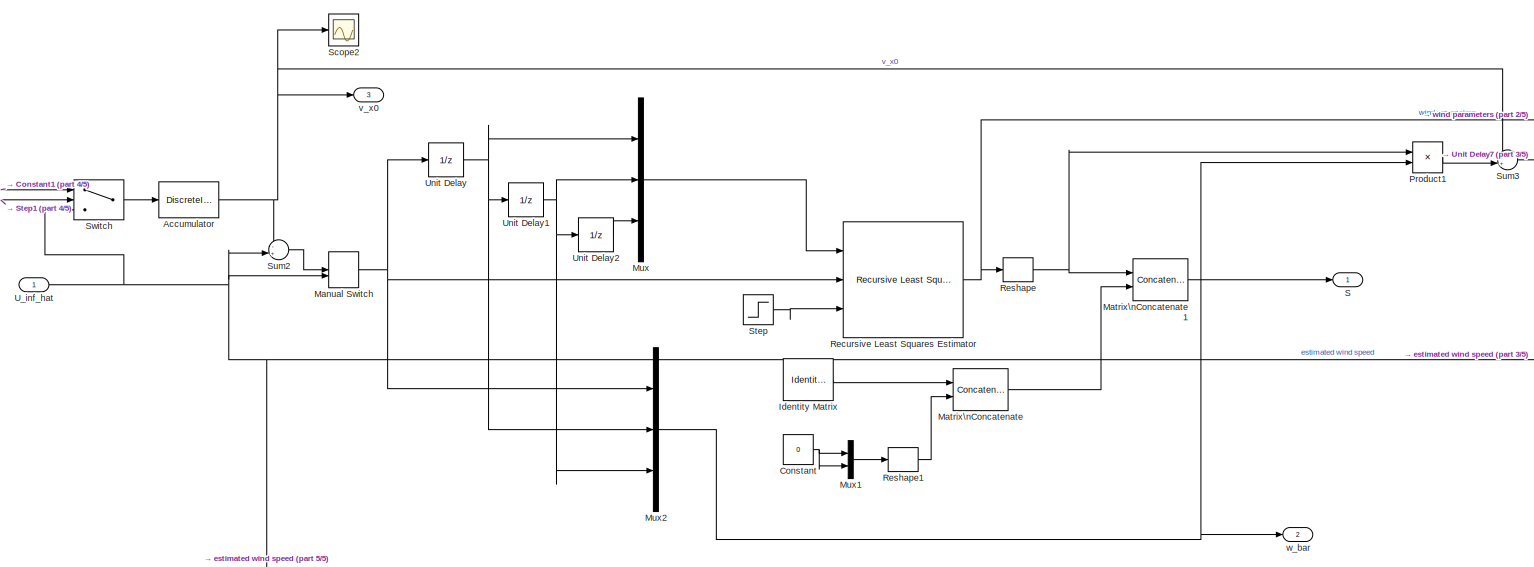
[diagram: root canvas - part 1/5, full width, top band]
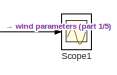
[diagram: root canvas - part 2/5, top right region]
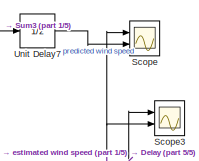
[diagram: root canvas - part 3/5, top right region]
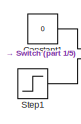
[diagram: root canvas - part 4/5, top left region]
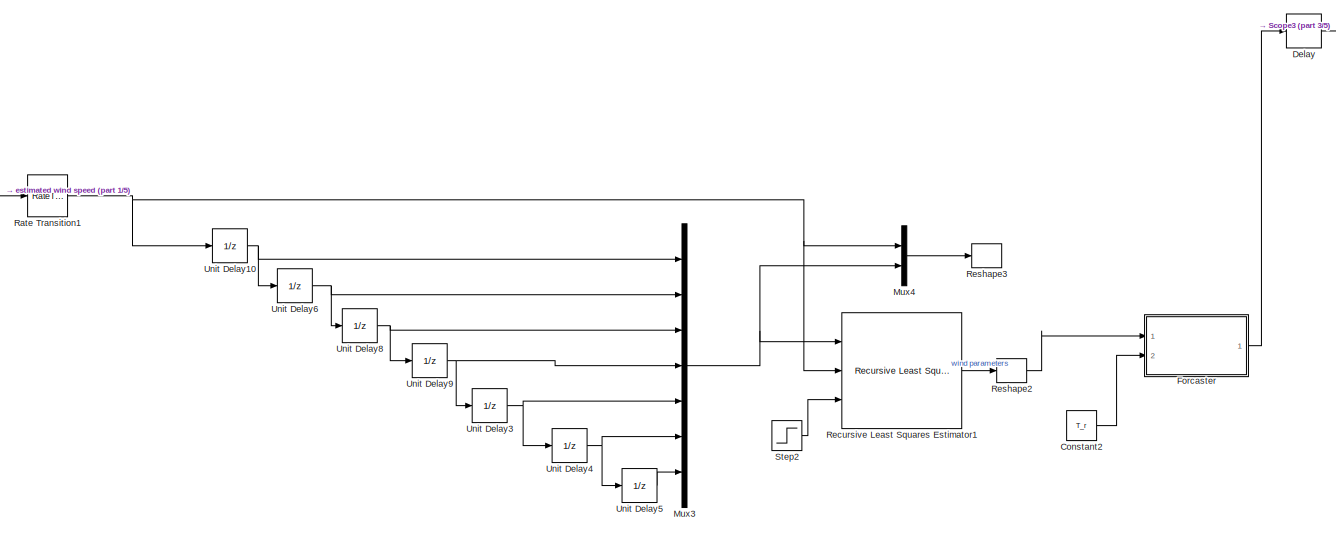
[diagram: root canvas - part 5/5, bottom center region]
MODEL forcaster
KIND model
BLOCK [DiscreteIntegrator] Accumulator
  ICPrevOutput = DiscIntNeverNeededParam
  ICPrevScaledInput = DiscIntNeverNeededParam
  InitialConditionSetting = Auto
  IntegratorMethod = Accumulation: Forward Euler
  Ports = [1, 1]
  SID = 63
  SampleTime = T_s
  gainval = T_s/T_mean
BLOCK [Constant] Constant
  SID = 2
  Value = 0
BLOCK [Constant] Constant1
  SID = 65
  Value = 0
BLOCK [Constant] Constant2
  SID = 69
  Value = T_r
BLOCK [Delay] Delay
  DelayLength = 46
  InitialCondition = 0
  InputPortMap = u0
  Ports = [1, 1]
  SID = 89
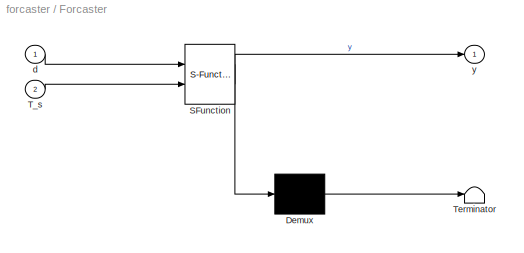
BLOCK [SubSystem] Forcaster
  ErrorFcn = Stateflow.Translate.translate
  PermitHierarchicalResolution = ExplicitOnly
  Ports = [2, 1]
  RequestExecContextInheritance = off
  SFBlockType = MATLAB Function
  SID = 68
  TreatAsAtomicUnit = on
BLOCK [Demux] Forcaster/ Demux 
  Outputs = 1
  Ports = [1, 1]
  SID = 68::20
BLOCK [S-Function] Forcaster/ SFunction 
  EnableBusSupport = on
  FunctionName = sf_sfun
  PortCounts = [2 2]
  Ports = [2, 2]
  SFcnIsStateOwnerBlock = off
  SFunctionDeploymentMode = off
  SID = 68::19
  Tag = Stateflow S-Function 2
BLOCK [Terminator] Forcaster/ Terminator 
  SID = 68::21
BLOCK [Inport] Forcaster/T_s
  Port = 2
  SID = 68::23
BLOCK [Inport] Forcaster/d
  SID = 68::1
BLOCK [Outport] Forcaster/y
  SID = 68::5
BLOCK [Reference] Identity Matrix  REF=dspmtrx3/Identity Matrix
  Inherit = off
  LastOutDataTypeStr = double
  MultiThreadCoSim = auto
  N = 2
  OutDataTypeStr = double
  Ports = [0, 1]
  SID = 3
  SourceBlock = dspmtrx3/Identity Matrix
  SourceProductBaseCode = DS
  SourceType = Identity Matrix
  Ts = T_s
  additionalParams = off
  allowOverrides = on
  dataType = double
  fracBitsMode = Best precision
  isSigned = on
  numFracBits = 15
  udDataType = sfix(16)
  wordLen = 16
BLOCK [ManualSwitch] Manual Switch
  CurrentSetting = 0
  SID = 71
BLOCK [Concatenate] Matrix\nConcatenate
  ConcatenateDimension = 2
  Mode = Multidimensional array
  Ports = [2, 1]
  SID = 4
BLOCK [Concatenate] Matrix\nConcatenate1
  Mode = Multidimensional array
  Ports = [2, 1]
  SID = 5
BLOCK [Mux] Mux
  DisplayOption = bar
  Inputs = 3
  Ports = [3, 1]
  SID = 6
BLOCK [Mux] Mux1
  DisplayOption = bar
  Inputs = 2
  Ports = [2, 1]
  SID = 7
BLOCK [Mux] Mux2
  DisplayOption = bar
  Inputs = 3
  Ports = [3, 1]
  SID = 16
BLOCK [Mux] Mux3
  DisplayOption = bar
  Inputs = 7
  Ports = [7, 1]
  SID = 72
BLOCK [Mux] Mux4
  DisplayOption = bar
  Inputs = 2
  Ports = [2, 1]
  SID = 82
BLOCK [Product] Product1
  Multiplication = Matrix(*)
  Ports = [2, 1]
  SID = 38
BLOCK [RateTransition] Rate Transition1
  Deterministic = off
  OutPortSampleTime = T_r
  SID = 87
BLOCK [Reference] Recursive Least Squares Estimator  REF=ctrlSharedLib/Recursive Least Squares Estimator
  AdaptationParameter = 0.9
  AddEnablePort = off
  EstimationMethod = Forgetting Factor
  ExternalReset = Rising
  HasTimeVaryingAdaptationParameter = off
  History = Infinite
  InitialEstimateSource = None
  InitialOutputs = 0
  InitialParameterData = 3
  InitialRegressors = 0
  InputProcessing = Sample-based
  NormalizationBias = eps
  OutputError = off
  OutputP = off
  P0 = 1e4
  Ports = [3, 1]
  RTWMemSecDataConstants = Inherit from model
  RTWMemSecDataInternal = Inherit from model
  RTWMemSecDataParameters = Inherit from model
  RTWMemSecFuncExecute = Inherit from model
  RTWMemSecFuncInitTerm = Inherit from model
  SID = 9
  SourceBlock = ctrlSharedLib/Recursive Least Squares Estimator
  SourceProductBaseCode = CT,ID
  SourceType = idEstimatorsRLS
  Ts = -1
  WindowLength = 200
BLOCK [Reference] Recursive Least Squares Estimator1  REF=ctrlSharedLib/Recursive Least Squares Estimator
  AdaptationParameter = 0.99
  AddEnablePort = off
  EstimationMethod = Forgetting Factor
  ExternalReset = Rising
  HasTimeVaryingAdaptationParameter = off
  History = Infinite
  InitialEstimateSource = None
  InitialOutputs = 0
  InitialParameterData = 7
  InitialRegressors = 0
  InputProcessing = Sample-based
  NormalizationBias = eps
  OutputError = off
  OutputP = off
  P0 = 1e4
  Ports = [3, 1]
  RTWMemSecDataConstants = Inherit from model
  RTWMemSecDataInternal = Inherit from model
  RTWMemSecDataParameters = Inherit from model
  RTWMemSecFuncExecute = Inherit from model
  RTWMemSecFuncInitTerm = Inherit from model
  SID = 80
  SourceBlock = ctrlSharedLib/Recursive Least Squares Estimator
  SourceProductBaseCode = CT,ID
  SourceType = idEstimatorsRLS
  Ts = T_r
  WindowLength = 200
BLOCK [Reshape] Reshape
  OutputDimensionality = Row vector (2-D)
  Ports = [1, 1]
  SID = 10
BLOCK [Reshape] Reshape1
  OutputDimensionality = Column vector (2-D)
  Ports = [1, 1]
  SID = 11
BLOCK [Reshape] Reshape2
  OutputDimensionality = Row vector (2-D)
  Ports = [1, 1]
  SID = 83
BLOCK [Reshape] Reshape3
  OutputDimensionality = Column vector (2-D)
  Ports = [1, 1]
  SID = 84
BLOCK [Outport] S
  SID = 15
  SampleTime = T_s
BLOCK [Scope] Scope
  Floating = off
  NumInputPorts = 2
  Ports = [2]
  SID = 39
  ScopeSpecificationString = Simulink.scopes.TimeScopeBlockCfg('CurrentConfiguration', extmgr.ConfigurationSet(extmgr.Configuration('Core','General UI',true),extmgr.Configuration('Core','Source UI',true),extmgr.Configuration('Sources','WiredSimulink',true),extmgr.Configuration('Visuals','Time Domain',true,'SerializedDisplays',{struct('MinYLimReal','-2.10095','MaxYLimReal','18.90858','YLabelReal','','MinYLimMag','0.00000','Max...<+1773ch>
BLOCK [Scope] Scope1
  Floating = off
  NumInputPorts = 1
  Ports = [1]
  SID = 44
  ScopeSpecificationString = Simulink.scopes.TimeScopeBlockCfg('CurrentConfiguration', extmgr.ConfigurationSet(extmgr.Configuration('Core','General UI',true),extmgr.Configuration('Core','Source UI',true),extmgr.Configuration('Sources','WiredSimulink',true,'DataLoggingVariableName','ScopeData1'),extmgr.Configuration('Visuals','Time Domain',true,'SerializedDisplays',{struct('MinYLimReal','-12.94829','MaxYLimReal','9.10808','YLa...<+1611ch>
BLOCK [Scope] Scope2
  Floating = off
  NumInputPorts = 1
  Ports = [1]
  SID = 60
  ScopeSpecificationString = Simulink.scopes.TimeScopeBlockCfg('CurrentConfiguration', extmgr.ConfigurationSet(extmgr.Configuration('Core','General UI',true),extmgr.Configuration('Core','Source UI',true),extmgr.Configuration('Sources','WiredSimulink',true,'DataLoggingVariableName','ScopeData2'),extmgr.Configuration('Visuals','Time Domain',true,'SerializedDisplays',{struct('MinYLimReal','-1.76339','MaxYLimReal','15.87053','YLa...<+1453ch>
BLOCK [Scope] Scope3
  Floating = off
  NumInputPorts = 2
  Ports = [2]
  SID = 70
  ScopeSpecificationString = Simulink.scopes.TimeScopeBlockCfg('CurrentConfiguration', extmgr.ConfigurationSet(extmgr.Configuration('Core','General UI',true),extmgr.Configuration('Core','Source UI',true),extmgr.Configuration('Sources','WiredSimulink',true,'DataLoggingVariableName','ScopeData1'),extmgr.Configuration('Visuals','Time Domain',true,'SerializedDisplays',{struct('MinYLimReal','-3.5','MaxYLimReal','31.5','YLabelReal'...<+1838ch>
BLOCK [Step] Step
  SID = 59
  SampleTime = T_s
  Time = T_mean
BLOCK [Step] Step1
  SID = 66
  SampleTime = T_s
  Time = T_mean
BLOCK [Step] Step2
  SID = 81
  SampleTime = T_s
  Time = T_mean
BLOCK [Sum] Sum2
  Inputs = -+|
  Ports = [2, 1]
  SID = 57
BLOCK [Sum] Sum3
  Inputs = ++|
  Ports = [2, 1]
  SID = 58
BLOCK [Switch] Switch
  Criteria = u2 > Threshold
  InputSameDT = off
  SID = 64
  SaturateOnIntegerOverflow = off
BLOCK [Inport] U_inf_hat
  SID = 1
  SampleTime = T_s
BLOCK [UnitDelay] Unit Delay
  HasFrameUpgradeWarning = on
  SID = 12
  SampleTime = -1
BLOCK [UnitDelay] Unit Delay1
  HasFrameUpgradeWarning = on
  SID = 13
  SampleTime = -1
BLOCK [UnitDelay] Unit Delay10
  HasFrameUpgradeWarning = on
  SID = 79
  SampleTime = -1
BLOCK [UnitDelay] Unit Delay2
  HasFrameUpgradeWarning = on
  SID = 14
  SampleTime = -1
BLOCK [UnitDelay] Unit Delay3
  HasFrameUpgradeWarning = on
  SID = 73
  SampleTime = -1
BLOCK [UnitDelay] Unit Delay4
  HasFrameUpgradeWarning = on
  SID = 74
  SampleTime = -1
BLOCK [UnitDelay] Unit Delay5
  HasFrameUpgradeWarning = on
  SID = 75
  SampleTime = -1
BLOCK [UnitDelay] Unit Delay6
  HasFrameUpgradeWarning = on
  SID = 76
  SampleTime = -1
BLOCK [UnitDelay] Unit Delay7
  HasFrameUpgradeWarning = on
  SID = 43
  SampleTime = -1
BLOCK [UnitDelay] Unit Delay8
  HasFrameUpgradeWarning = on
  SID = 77
  SampleTime = -1
BLOCK [UnitDelay] Unit Delay9
  HasFrameUpgradeWarning = on
  SID = 78
  SampleTime = -1
BLOCK [Outport] v_x0
  Port = 3
  SID = 67
  SampleTime = T_s
BLOCK [Outport] w_bar
  Port = 2
  SID = 17
  SampleTime = T_s
NET Accumulator:1 -> Scope2:1, Sum2:1, Sum3:1, v_x0:1
LINE Constant1:1 -> Switch:1
LINE Constant2:1 -> Forcaster:2
NET Constant:1 -> Mux1:1, Mux1:2
LINE Delay:1 -> Scope3:1
LINE Forcaster/ Demux :1 -> Forcaster/ Terminator :1
LINE Forcaster/ SFunction :1 -> Forcaster/ Demux :1
LINE Forcaster/ SFunction :2 -> Forcaster/y:1
LINE Forcaster/T_s:1 -> Forcaster/ SFunction :2
LINE Forcaster/d:1 -> Forcaster/ SFunction :1
LINE Forcaster:1 -> Delay:1
LINE Identity Matrix:1 -> Matrix\nConcatenate:1
NET Manual Switch:1 -> Mux2:1, Recursive Least Squares Estimator:2, Unit Delay:1
LINE Matrix\nConcatenate1:1 -> S:1
LINE Matrix\nConcatenate:1 -> Matrix\nConcatenate1:2
LINE Mux1:1 -> Reshape1:1
NET Mux2:1 -> Product1:2, w_bar:1
NET Mux3:1 -> Mux4:2, Recursive Least Squares Estimator1:1
LINE Mux4:1 -> Reshape3:1
LINE Mux:1 -> Recursive Least Squares Estimator:1
LINE Product1:1 -> Sum3:2
NET Rate Transition1:1 -> Mux4:1, Recursive Least Squares Estimator1:2, Unit Delay10:1
LINE Recursive Least Squares Estimator1:1 -> Reshape2:1
NET Recursive Least Squares Estimator:1 -> Reshape:1, Scope1:1
LINE Reshape1:1 -> Matrix\nConcatenate:2
LINE Reshape2:1 -> Forcaster:1
NET Reshape:1 -> Matrix\nConcatenate1:1, Product1:1
LINE Step1:1 -> Switch:2
LINE Step2:1 -> Recursive Least Squares Estimator1:3
LINE Step:1 -> Recursive Least Squares Estimator:3
LINE Sum2:1 -> Manual Switch:1
LINE Sum3:1 -> Unit Delay7:1
LINE Switch:1 -> Accumulator:1
NET U_inf_hat:1 -> Manual Switch:2, Rate Transition1:1, Scope3:2, Scope:1, Sum2:2, Switch:3
NET Unit Delay10:1 -> Mux3:1, Unit Delay6:1
NET Unit Delay1:1 -> Mux2:3, Mux:2, Unit Delay2:1
LINE Unit Delay2:1 -> Mux:3
NET Unit Delay3:1 -> Mux3:5, Unit Delay4:1
NET Unit Delay4:1 -> Mux3:6, Unit Delay5:1
LINE Unit Delay5:1 -> Mux3:7
NET Unit Delay6:1 -> Mux3:2, Unit Delay8:1
LINE Unit Delay7:1 -> Scope:2
NET Unit Delay8:1 -> Mux3:3, Unit Delay9:1
NET Unit Delay9:1 -> Mux3:4, Unit Delay3:1
NET Unit Delay:1 -> Mux2:2, Mux:1, Unit Delay1:1
note: NET lines group one-source signal fan-out (src -> all destinations, sorted); 1:1 wires keep LINE
CHART Forcaster states=1 transitions=1
  STATE_LABEL 'eML_blk_kernel()'
